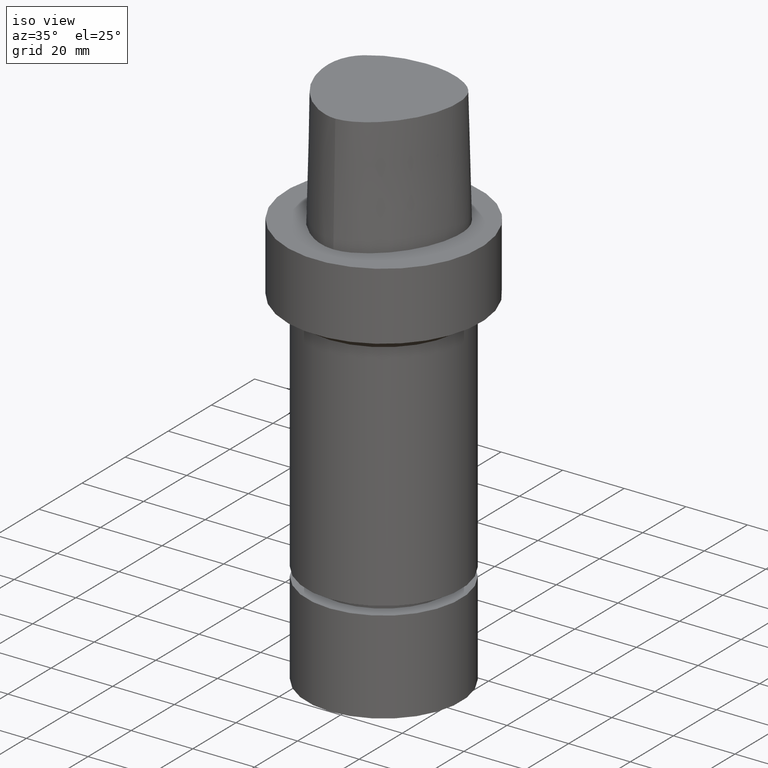
[diagram: clean part render]
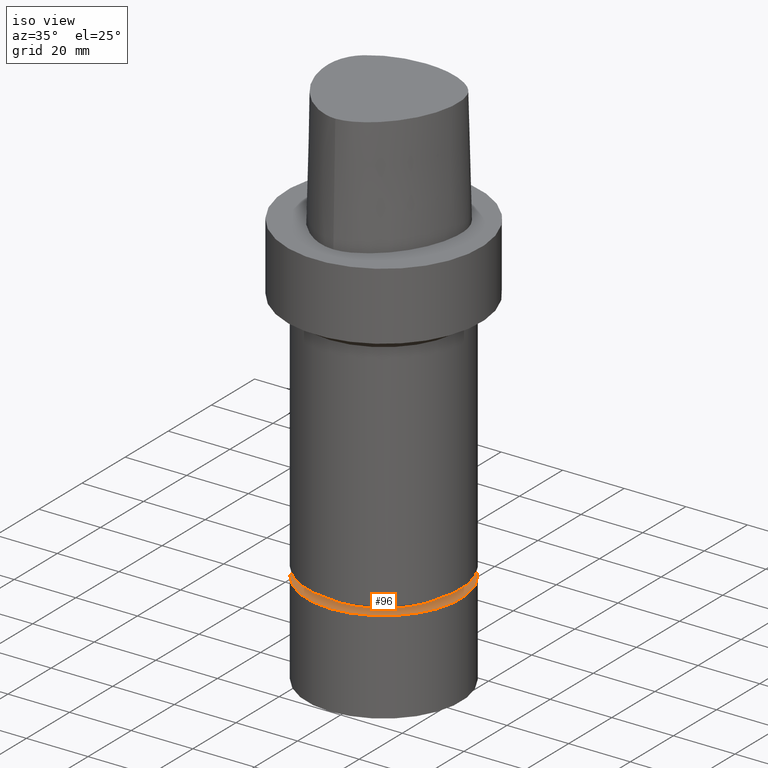
[diagram: same view with one face highlighted and labeled with its STEP entity id]
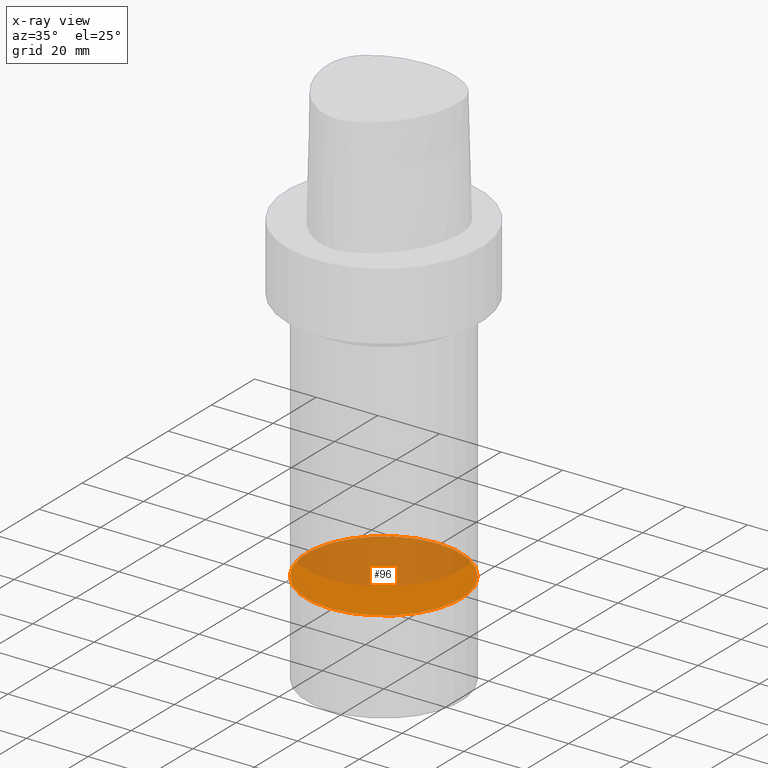
[diagram: x-ray of the same camera — body ghosted, the highlighted face saturated]
A machine part, iso view. The second image highlights one B-rep face of the part: STEP entity #96.
The next image is the same camera in x-ray: the body ghosted, the highlighted face saturated — about 55% of this face is hidden behind the body in this view.
In plain terms, the highlighted planar face has unit normal (-0, -0, 1).
Its self-contained STEP definition (entity closure, byte-faithful):
#96=ADVANCED_FACE('Unnamed[1]',(#229),#230,.T.);
#108=EDGE_CURVE('Unnamed[1]',#248,#248,#249,.T.);
#229=FACE_OUTER_BOUND('',#397,.T.);
#230=PLANE('',#398);
#248=VERTEX_POINT('',#436);
#249=CIRCLE('',#437,25.0);
#397=EDGE_LOOP('',(#774));
#398=AXIS2_PLACEMENT_3D('',#775,#776,#777);
#436=CARTESIAN_POINT('',(6.41714922753213E-015,25.0,-104.8));
#437=AXIS2_PLACEMENT_3D('',#793,#794,#795);
#774=ORIENTED_EDGE('',*,*,#108,.F.);
#775=CARTESIAN_POINT('',(6.41714922753213E-015,12.5,-104.8));
#776=DIRECTION('',(-6.12323399573677E-017,-1.22464679914735E-016,1.0));
#777=DIRECTION('',(1.23259516440783E-032,-1.0,-1.22464679914735E-016));
#793=CARTESIAN_POINT('',(6.41714922753213E-015,1.28342984550643E-014,-104.8));
#794=DIRECTION('',(6.12323399573677E-017,1.22464679914735E-016,-1.0));
#795=DIRECTION('',(-1.23259516440783E-032,1.0,1.22464679914735E-016));